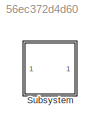
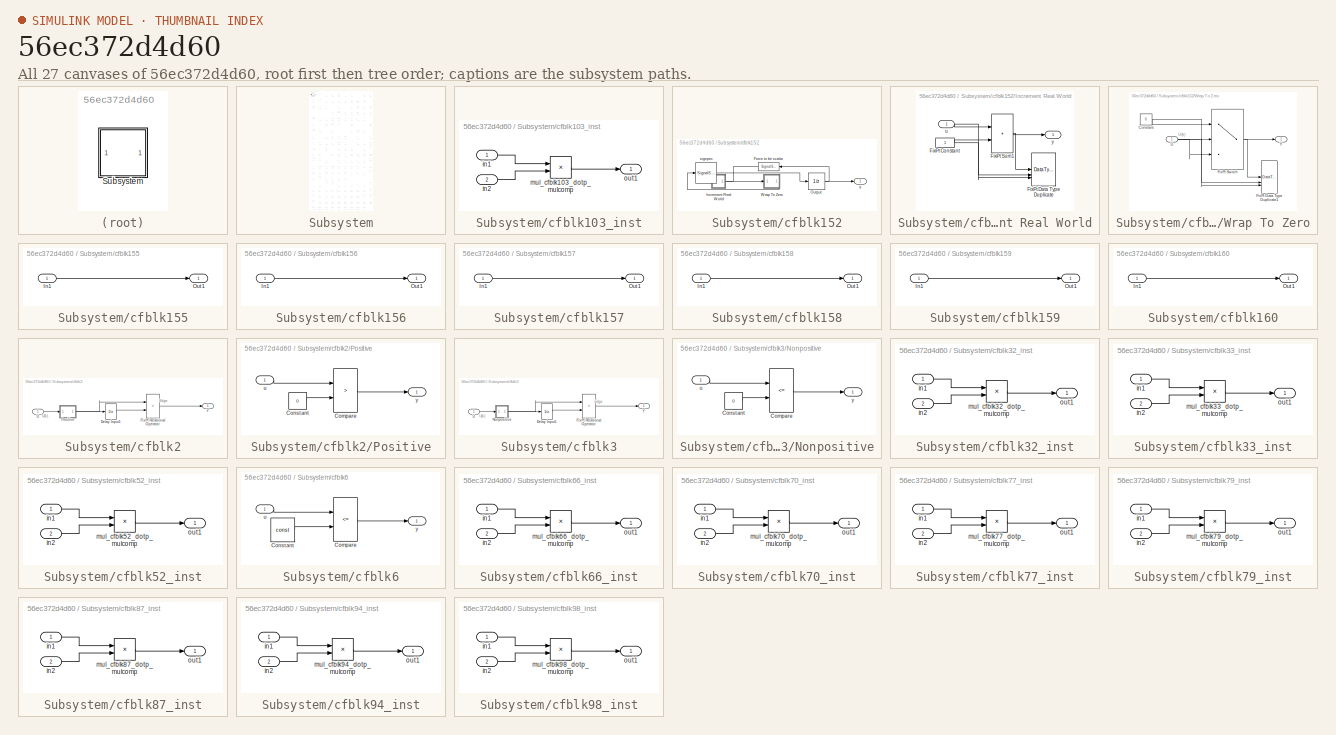
[diagram: thumbnail index - all 27 canvases of the model, root first then tree order]
MODEL slx_56ec372d4d60
KIND model
CONFIG AbsTol = auto
CONFIG EnableMultiTasking = off
CONFIG FixedStep = auto
CONFIG MaxStep = auto
CONFIG MinStep = auto
CONFIG RelTol = 1e-3
CONFIG SampleTimeConstraint = Unconstrained
CONFIG SolverName = VariableStepAuto
CONFIG StartTime = 0.0
CONFIG StopTime = 10.0
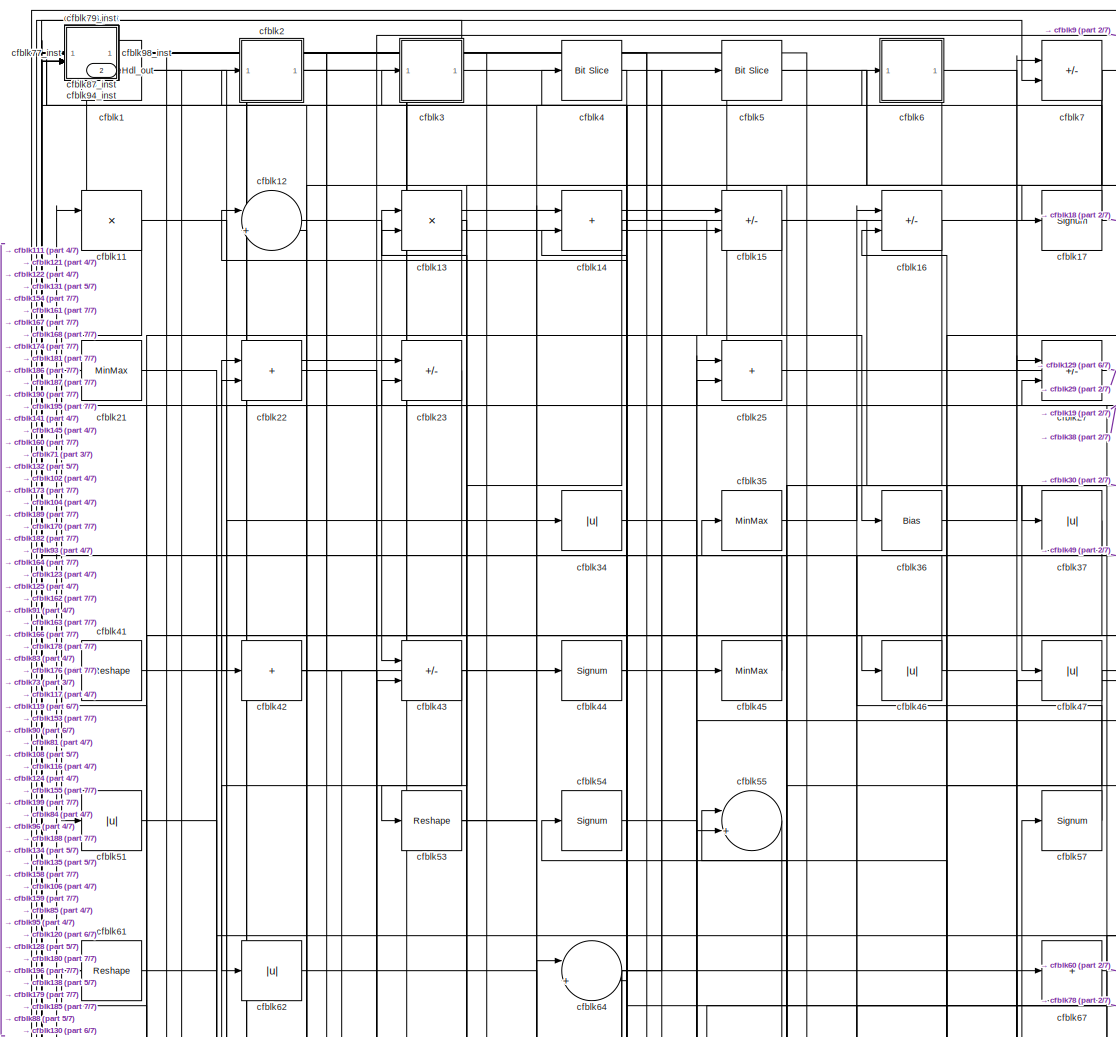
[diagram: Subsystem - part 1/7, top center region]
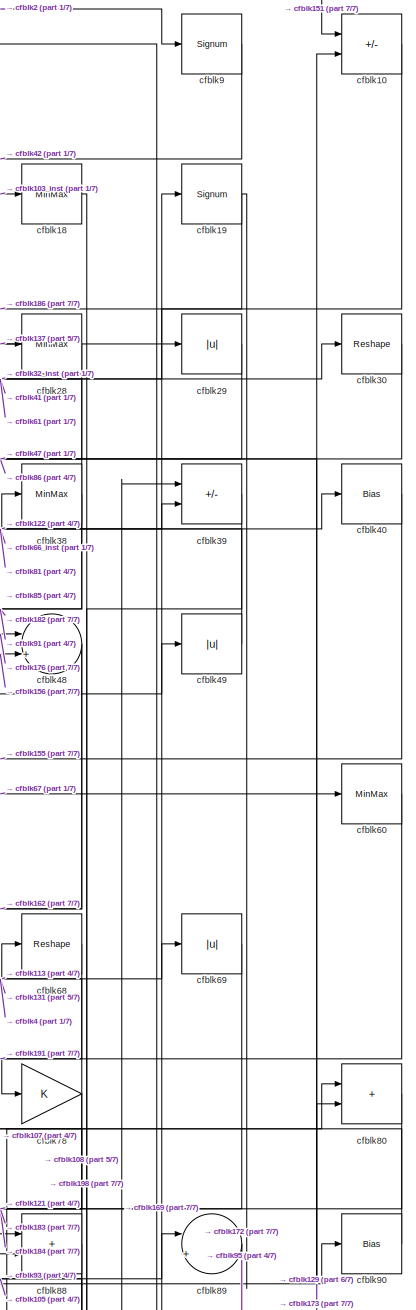
[diagram: Subsystem - part 2/7, top right region]
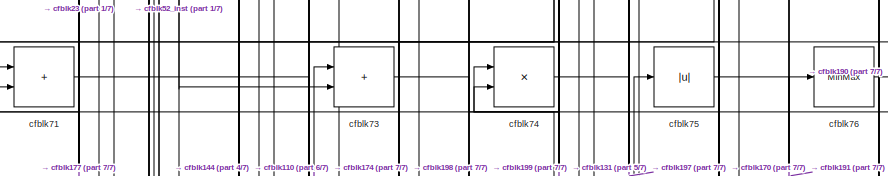
[diagram: Subsystem - part 3/7, middle left region]
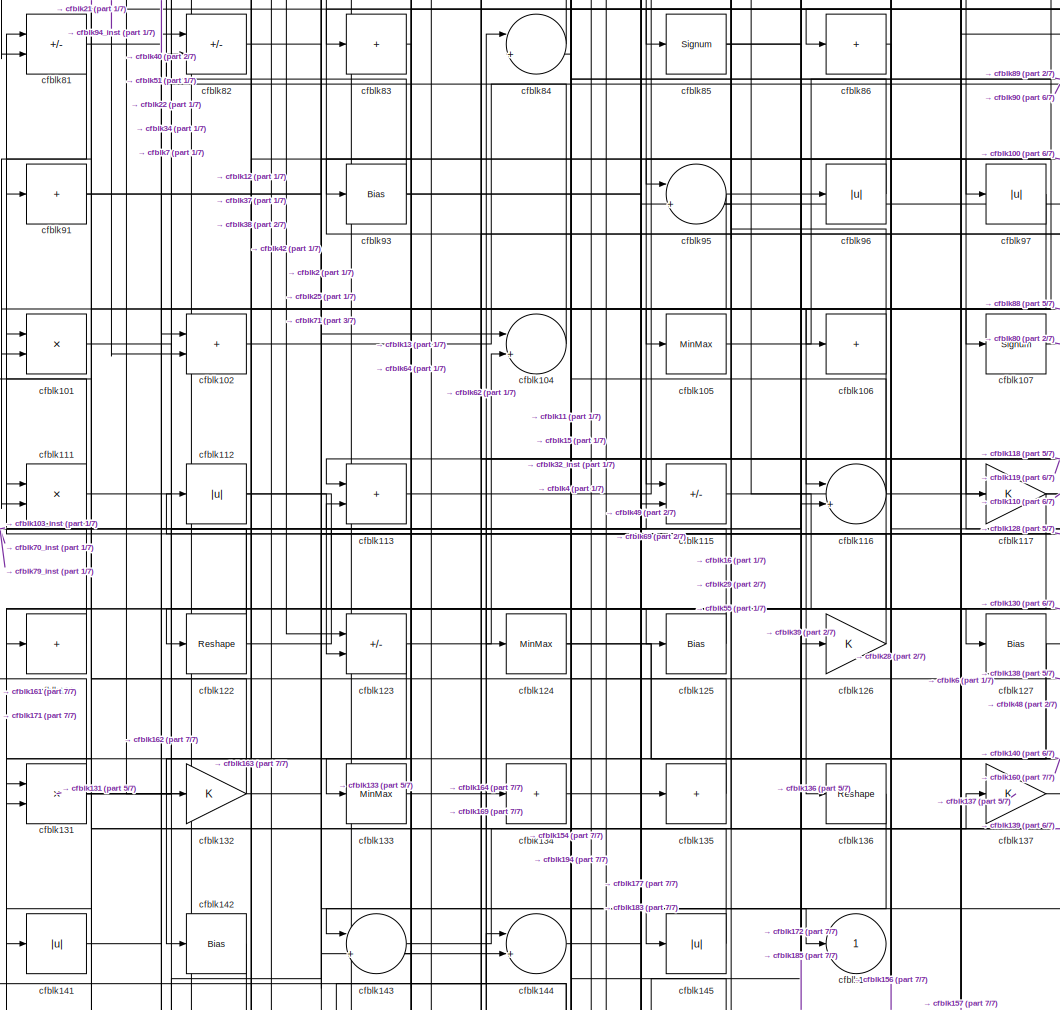
[diagram: Subsystem - part 4/7, central region]
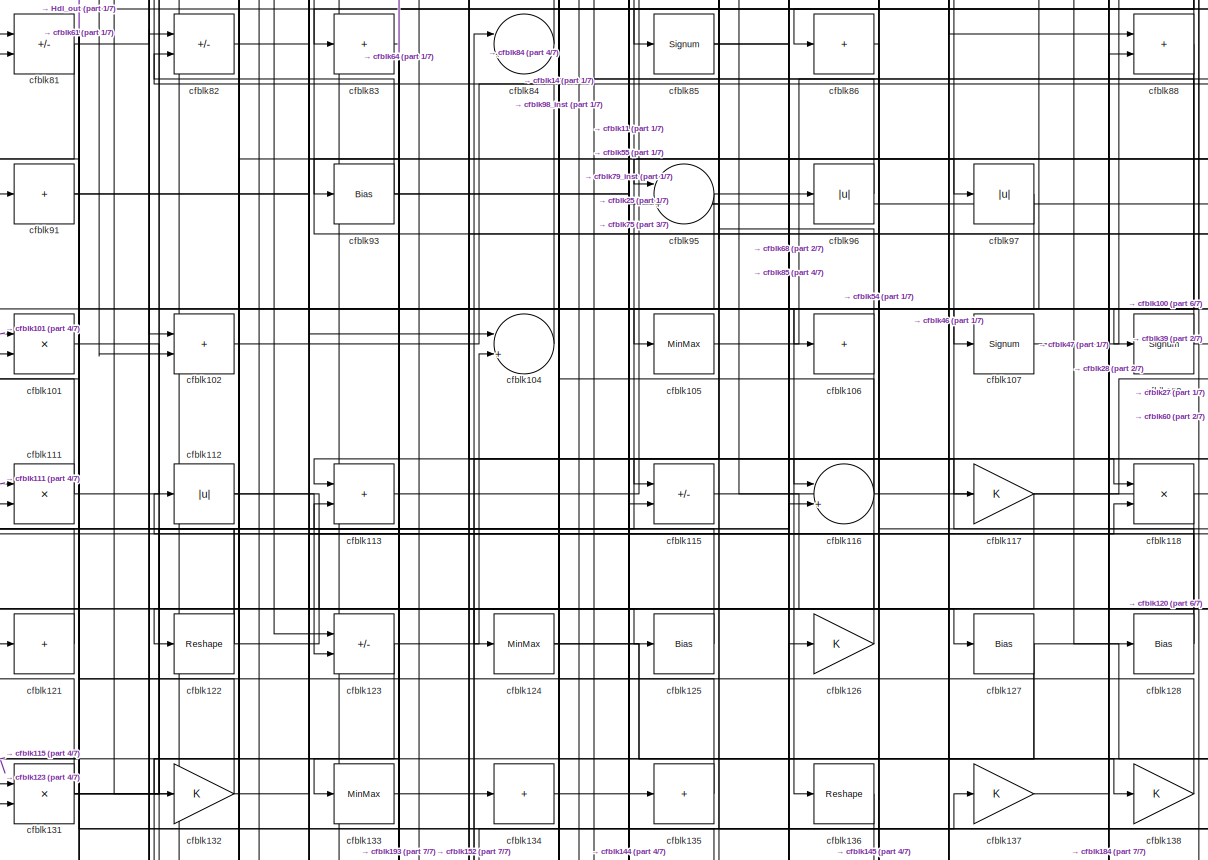
[diagram: Subsystem - part 5/7, full width, middle band]
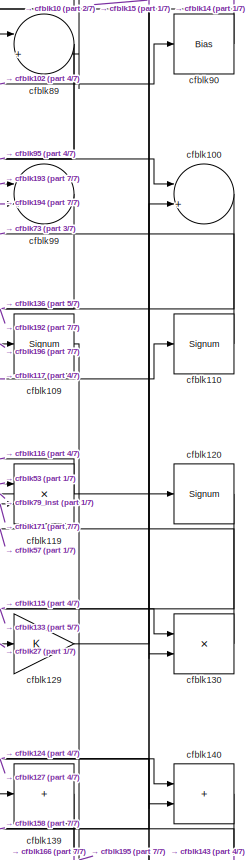
[diagram: Subsystem - part 6/7, middle right region]
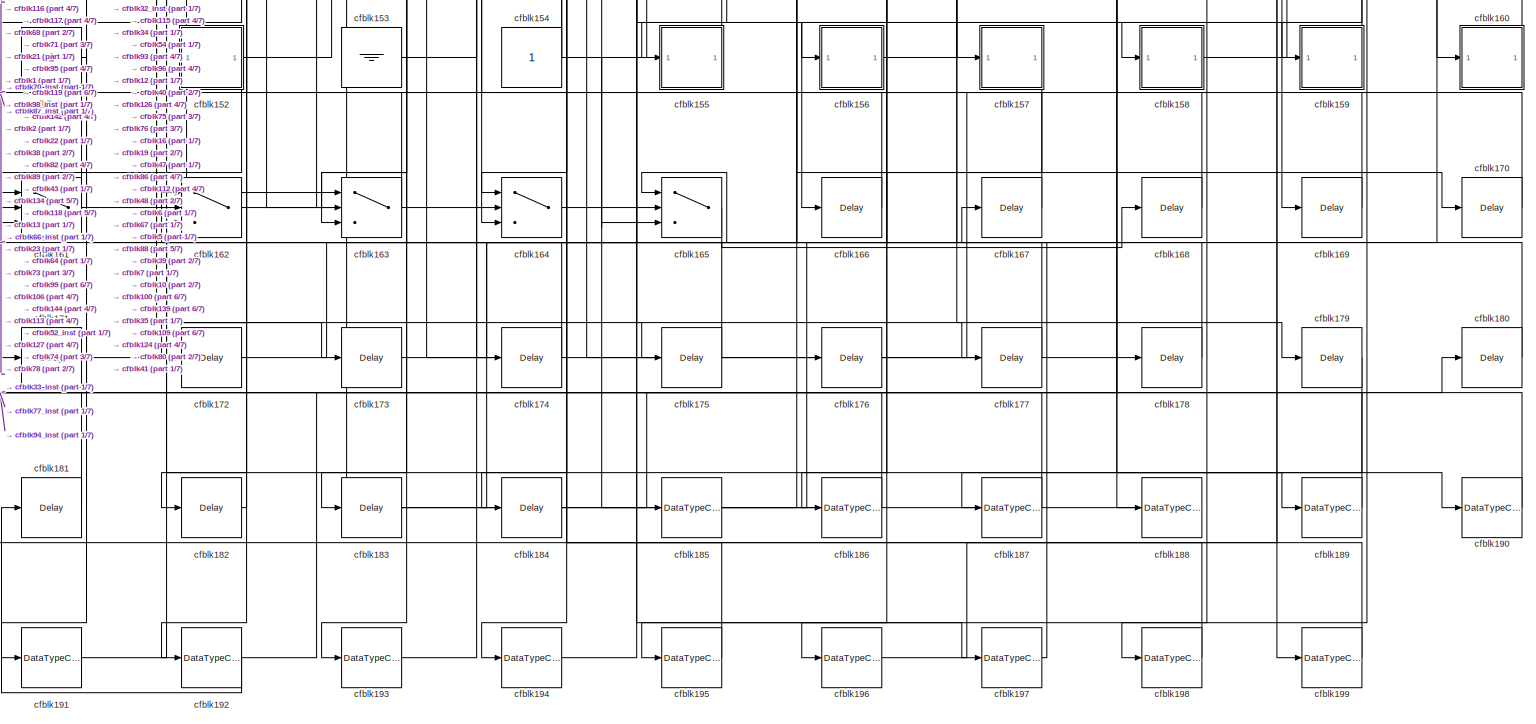
[diagram: Subsystem - part 7/7, full width, bottom band]
BLOCK [SubSystem] Subsystem
BLOCK [Outport] Subsystem/Hdl_out
  OutDataTypeStr = uint8
  Port = 2
  SampleTime = 1
BLOCK [Reference] Subsystem/cfblk1  REF=simulink/Logic and Bit
Operations/Bit Clear
  LibrarySourceBlock = hdlsllib/Logic and Bit\nOperations/Bit Clear
  SourceBlock = simulink/Logic and Bit\nOperations/Bit Clear
  SourceType = Bit Clear
BLOCK [Sum] Subsystem/cfblk10
  IconShape = rectangular
  Inputs = +-
  OutDataTypeStr = uint8
BLOCK [Sum] Subsystem/cfblk100
  Inputs = |++
  OutDataTypeStr = uint8
BLOCK [Product] Subsystem/cfblk101
  Inputs = */
  OutDataTypeStr = uint8
  RndMeth = Zero
  SaturateOnIntegerOverflow = on
BLOCK [Sum] Subsystem/cfblk102
  IconShape = rectangular
  OutDataTypeStr = uint8
BLOCK [SubSystem] Subsystem/cfblk103_inst
BLOCK [Inport] Subsystem/cfblk103_inst/in1
  OutDataTypeStr = uint8
  SampleTime = 1
BLOCK [Inport] Subsystem/cfblk103_inst/in2
  OutDataTypeStr = uint8
  Port = 2
  SampleTime = 1
BLOCK [Product] Subsystem/cfblk103_inst/mul_cfblk103_dotp_mulcomp
  Inputs = **
  OutDataTypeStr = uint8
  SampleTime = 1
BLOCK [Outport] Subsystem/cfblk103_inst/out1
  OutDataTypeStr = uint8
  SampleTime = 1
BLOCK [Sum] Subsystem/cfblk104
  Inputs = |++
  OutDataTypeStr = uint8
BLOCK [MinMax] Subsystem/cfblk105
  OutDataTypeStr = uint8
BLOCK [Sum] Subsystem/cfblk106
  IconShape = rectangular
  Inputs = +
  OutDataTypeStr = uint8
BLOCK [Signum] Subsystem/cfblk107
BLOCK [Signum] Subsystem/cfblk108
BLOCK [Signum] Subsystem/cfblk109
BLOCK [Product] Subsystem/cfblk11
  Inputs = */
  OutDataTypeStr = uint8
  RndMeth = Zero
  SaturateOnIntegerOverflow = on
BLOCK [Signum] Subsystem/cfblk110
BLOCK [Product] Subsystem/cfblk111
  Inputs = */
  OutDataTypeStr = uint8
  RndMeth = Zero
  SaturateOnIntegerOverflow = on
BLOCK [Abs] Subsystem/cfblk112
  OutDataTypeStr = uint8
  SaturateOnIntegerOverflow = off
BLOCK [Sum] Subsystem/cfblk113
  IconShape = rectangular
  OutDataTypeStr = uint8
BLOCK [Sum] Subsystem/cfblk115
  IconShape = rectangular
  Inputs = +-
  OutDataTypeStr = uint8
BLOCK [Sum] Subsystem/cfblk116
  Inputs = |++
  OutDataTypeStr = uint8
BLOCK [Gain] Subsystem/cfblk117
  OutDataTypeStr = uint8
BLOCK [Product] Subsystem/cfblk118
  Inputs = */
  OutDataTypeStr = uint8
  RndMeth = Zero
  SaturateOnIntegerOverflow = on
BLOCK [Product] Subsystem/cfblk119
  Inputs = */
  OutDataTypeStr = uint8
  RndMeth = Zero
  SaturateOnIntegerOverflow = on
BLOCK [Sum] Subsystem/cfblk12
  Inputs = |++
  OutDataTypeStr = uint8
BLOCK [Signum] Subsystem/cfblk120
BLOCK [Sum] Subsystem/cfblk121
  IconShape = rectangular
  Inputs = +
  OutDataTypeStr = uint8
BLOCK [Reshape] Subsystem/cfblk122
BLOCK [Sum] Subsystem/cfblk123
  IconShape = rectangular
  Inputs = +-
  OutDataTypeStr = uint8
BLOCK [MinMax] Subsystem/cfblk124
  OutDataTypeStr = uint8
BLOCK [Bias] Subsystem/cfblk125
  Bias = 0.0
  SaturateOnIntegerOverflow = off
BLOCK [Gain] Subsystem/cfblk126
  OutDataTypeStr = uint8
BLOCK [Bias] Subsystem/cfblk127
  Bias = 0.0
  SaturateOnIntegerOverflow = off
BLOCK [Bias] Subsystem/cfblk128
  Bias = 0.0
  SaturateOnIntegerOverflow = off
BLOCK [Gain] Subsystem/cfblk129
  OutDataTypeStr = uint8
BLOCK [Product] Subsystem/cfblk13
  Inputs = */
  OutDataTypeStr = uint8
  RndMeth = Zero
  SaturateOnIntegerOverflow = on
BLOCK [Product] Subsystem/cfblk130
  Inputs = */
  OutDataTypeStr = uint8
  RndMeth = Zero
  SaturateOnIntegerOverflow = on
BLOCK [Product] Subsystem/cfblk131
  Inputs = */
  OutDataTypeStr = uint8
  RndMeth = Zero
  SaturateOnIntegerOverflow = on
BLOCK [Gain] Subsystem/cfblk132
  OutDataTypeStr = uint8
BLOCK [MinMax] Subsystem/cfblk133
  OutDataTypeStr = uint8
BLOCK [Sum] Subsystem/cfblk134
  IconShape = rectangular
  Inputs = +
  OutDataTypeStr = uint8
BLOCK [Sum] Subsystem/cfblk135
  IconShape = rectangular
  Inputs = +
  OutDataTypeStr = uint8
BLOCK [Reshape] Subsystem/cfblk136
BLOCK [Gain] Subsystem/cfblk137
  OutDataTypeStr = uint8
BLOCK [Gain] Subsystem/cfblk138
  OutDataTypeStr = uint8
BLOCK [Sum] Subsystem/cfblk139
  IconShape = rectangular
  Inputs = +
  OutDataTypeStr = uint8
BLOCK [Sum] Subsystem/cfblk14
  IconShape = rectangular
  OutDataTypeStr = uint8
BLOCK [Sum] Subsystem/cfblk140
  IconShape = rectangular
  OutDataTypeStr = uint8
BLOCK [Abs] Subsystem/cfblk141
  OutDataTypeStr = uint8
  SaturateOnIntegerOverflow = off
BLOCK [Bias] Subsystem/cfblk142
  Bias = 0.0
  SaturateOnIntegerOverflow = off
BLOCK [Sum] Subsystem/cfblk143
  Inputs = |++
  OutDataTypeStr = uint8
BLOCK [Sum] Subsystem/cfblk144
  Inputs = |++
  OutDataTypeStr = uint8
BLOCK [Abs] Subsystem/cfblk145
  OutDataTypeStr = uint8
  SaturateOnIntegerOverflow = off
BLOCK [Outport] Subsystem/cfblk146
  OutDataTypeStr = uint8
  SampleTime = 1
  VectorParamsAs1DForOutWhenUnconnected = off
BLOCK [Sum] Subsystem/cfblk15
  IconShape = rectangular
  Inputs = +-
  OutDataTypeStr = uint8
BLOCK [Constant] Subsystem/cfblk151
  OutDataTypeStr = uint8
  SampleTime = -1
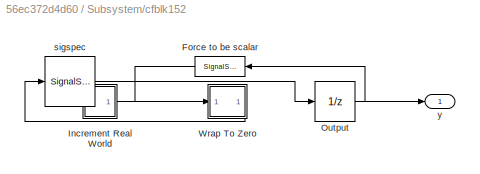
BLOCK [SubSystem] Subsystem/cfblk152
BLOCK [SignalSpecification] Subsystem/cfblk152/Force to be scalar
  Dimensions = 1
  DisableCoverage = on
BLOCK [SubSystem] Subsystem/cfblk152/Increment Real World
BLOCK [Constant] Subsystem/cfblk152/Increment Real World/FixPt Constant
  DisableCoverage = on
  OutDataTypeStr = Inherit: Inherit via back propagation
  SampleTime = -1
BLOCK [DataTypeDuplicate] Subsystem/cfblk152/Increment Real World/FixPt Data Type Duplicate
  DisableCoverage = on
  NumInputPorts = 3
BLOCK [Sum] Subsystem/cfblk152/Increment Real World/FixPt Sum1
  IconShape = rectangular
  InputSameDT = on
  LockScale = on
  OutDataTypeStr = Inherit: Inherit via back propagation
BLOCK [Inport] Subsystem/cfblk152/Increment Real World/u
  OutDataTypeStr = uint8
  SampleTime = 1
BLOCK [Outport] Subsystem/cfblk152/Increment Real World/y
  SampleTime = 1
BLOCK [UnitDelay] Subsystem/cfblk152/Output
  HasFrameUpgradeWarning = on
  InitialCondition = 0.0
  SampleTime = tsamp
BLOCK [SubSystem] Subsystem/cfblk152/Wrap To Zero
BLOCK [Constant] Subsystem/cfblk152/Wrap To Zero/Constant
  DisableCoverage = on
  OutDataTypeStr = Inherit: Inherit via back propagation
  SampleTime = -1
  Value = 0
BLOCK [DataTypeDuplicate] Subsystem/cfblk152/Wrap To Zero/FixPt Data Type Duplicate1
  DisableCoverage = on
  NumInputPorts = 3
BLOCK [Switch] Subsystem/cfblk152/Wrap To Zero/FixPt Switch
  Criteria = u2 > Threshold
  InputSameDT = off
  OutDataTypeStr = Inherit: Inherit via back propagation
  SaturateOnIntegerOverflow = off
  Threshold = Threshold
  ZeroCross = off
BLOCK [Inport] Subsystem/cfblk152/Wrap To Zero/U
  OutDataTypeStr = uint8
  SampleTime = 1
BLOCK [Outport] Subsystem/cfblk152/Wrap To Zero/Y
  SampleTime = 1
BLOCK [SignalSpecification] Subsystem/cfblk152/sigspec
  Dimensions = 1
  OutDataTypeStr = uint8
BLOCK [Outport] Subsystem/cfblk152/y
  SampleTime = 1
BLOCK [Ground] Subsystem/cfblk153
BLOCK [Constant] Subsystem/cfblk154
  OutDataTypeStr = uint8
  SampleTime = -1
BLOCK [SubSystem] Subsystem/cfblk155
BLOCK [Inport] Subsystem/cfblk155/In1
  OutDataTypeStr = uint8
  PortDimensions = 1
  SampleTime = 1
BLOCK [Outport] Subsystem/cfblk155/Out1
  SampleTime = 1
BLOCK [SubSystem] Subsystem/cfblk156
BLOCK [Inport] Subsystem/cfblk156/In1
  OutDataTypeStr = uint8
  PortDimensions = 1
  SampleTime = 1
BLOCK [Outport] Subsystem/cfblk156/Out1
  SampleTime = 1
BLOCK [SubSystem] Subsystem/cfblk157
BLOCK [Inport] Subsystem/cfblk157/In1
  OutDataTypeStr = uint8
  PortDimensions = 1
  SampleTime = 1
BLOCK [Outport] Subsystem/cfblk157/Out1
  SampleTime = 1
BLOCK [SubSystem] Subsystem/cfblk158
BLOCK [Inport] Subsystem/cfblk158/In1
  OutDataTypeStr = uint8
  PortDimensions = 1
  SampleTime = 1
BLOCK [Outport] Subsystem/cfblk158/Out1
  SampleTime = 1
BLOCK [SubSystem] Subsystem/cfblk159
BLOCK [Inport] Subsystem/cfblk159/In1
  OutDataTypeStr = uint8
  PortDimensions = 1
  SampleTime = 1
BLOCK [Outport] Subsystem/cfblk159/Out1
  SampleTime = 1
BLOCK [Sum] Subsystem/cfblk16
  IconShape = rectangular
  Inputs = +-
  OutDataTypeStr = uint8
BLOCK [SubSystem] Subsystem/cfblk160
BLOCK [Inport] Subsystem/cfblk160/In1
  OutDataTypeStr = uint8
  PortDimensions = 1
  SampleTime = 1
BLOCK [Outport] Subsystem/cfblk160/Out1
  SampleTime = 1
BLOCK [Switch] Subsystem/cfblk161
  InputSameDT = off
  OutDataTypeStr = uint8
  SaturateOnIntegerOverflow = off
BLOCK [Switch] Subsystem/cfblk162
  InputSameDT = off
  OutDataTypeStr = uint8
  SaturateOnIntegerOverflow = off
BLOCK [Switch] Subsystem/cfblk163
  InputSameDT = off
  OutDataTypeStr = uint8
  SaturateOnIntegerOverflow = off
BLOCK [Switch] Subsystem/cfblk164
  InputSameDT = off
  OutDataTypeStr = uint8
  SaturateOnIntegerOverflow = off
BLOCK [Switch] Subsystem/cfblk165
  InputSameDT = off
  OutDataTypeStr = uint8
  SaturateOnIntegerOverflow = off
BLOCK [Delay] Subsystem/cfblk166
  InputPortMap = u0
  SampleTime = 1
BLOCK [Delay] Subsystem/cfblk167
  InputPortMap = u0
  SampleTime = 1
BLOCK [Delay] Subsystem/cfblk168
  InputPortMap = u0
  SampleTime = 1
BLOCK [Delay] Subsystem/cfblk169
  InputPortMap = u0
  SampleTime = 1
BLOCK [Signum] Subsystem/cfblk17
BLOCK [Delay] Subsystem/cfblk170
  InputPortMap = u0
  SampleTime = 1
BLOCK [Delay] Subsystem/cfblk171
  InputPortMap = u0
  SampleTime = 1
BLOCK [Delay] Subsystem/cfblk172
  InputPortMap = u0
  SampleTime = 1
BLOCK [Delay] Subsystem/cfblk173
  InputPortMap = u0
  SampleTime = 1
BLOCK [Delay] Subsystem/cfblk174
  InputPortMap = u0
  SampleTime = 1
BLOCK [Delay] Subsystem/cfblk175
  InputPortMap = u0
  SampleTime = 1
BLOCK [Delay] Subsystem/cfblk176
  InputPortMap = u0
  SampleTime = 1
BLOCK [Delay] Subsystem/cfblk177
  InputPortMap = u0
  SampleTime = 1
BLOCK [Delay] Subsystem/cfblk178
  InputPortMap = u0
  SampleTime = 1
BLOCK [Delay] Subsystem/cfblk179
  InputPortMap = u0
  SampleTime = 1
BLOCK [MinMax] Subsystem/cfblk18
  OutDataTypeStr = uint8
BLOCK [Delay] Subsystem/cfblk180
  InputPortMap = u0
  SampleTime = 1
BLOCK [Delay] Subsystem/cfblk181
  InputPortMap = u0
  SampleTime = 1
BLOCK [Delay] Subsystem/cfblk182
  InputPortMap = u0
  SampleTime = 1
BLOCK [Delay] Subsystem/cfblk183
  InputPortMap = u0
  SampleTime = 1
BLOCK [Delay] Subsystem/cfblk184
  InputPortMap = u0
  SampleTime = 1
BLOCK [DataTypeConversion] Subsystem/cfblk185
  OutDataTypeStr = uint8
  RndMeth = Floor
  SaturateOnIntegerOverflow = off
BLOCK [DataTypeConversion] Subsystem/cfblk186
  OutDataTypeStr = uint8
  RndMeth = Floor
  SaturateOnIntegerOverflow = off
BLOCK [DataTypeConversion] Subsystem/cfblk187
  OutDataTypeStr = uint8
  RndMeth = Floor
  SaturateOnIntegerOverflow = off
BLOCK [DataTypeConversion] Subsystem/cfblk188
  OutDataTypeStr = uint8
  RndMeth = Floor
  SaturateOnIntegerOverflow = off
BLOCK [DataTypeConversion] Subsystem/cfblk189
  OutDataTypeStr = uint8
  RndMeth = Floor
  SaturateOnIntegerOverflow = off
BLOCK [Signum] Subsystem/cfblk19
BLOCK [DataTypeConversion] Subsystem/cfblk190
  OutDataTypeStr = uint8
  RndMeth = Floor
  SaturateOnIntegerOverflow = off
BLOCK [DataTypeConversion] Subsystem/cfblk191
  OutDataTypeStr = uint8
  RndMeth = Floor
  SaturateOnIntegerOverflow = off
BLOCK [DataTypeConversion] Subsystem/cfblk192
  OutDataTypeStr = uint8
  RndMeth = Floor
  SaturateOnIntegerOverflow = off
BLOCK [DataTypeConversion] Subsystem/cfblk193
  OutDataTypeStr = uint8
  RndMeth = Floor
  SaturateOnIntegerOverflow = off
BLOCK [DataTypeConversion] Subsystem/cfblk194
  OutDataTypeStr = uint8
  RndMeth = Floor
  SaturateOnIntegerOverflow = off
BLOCK [DataTypeConversion] Subsystem/cfblk195
  OutDataTypeStr = uint8
  RndMeth = Floor
  SaturateOnIntegerOverflow = off
BLOCK [DataTypeConversion] Subsystem/cfblk196
  OutDataTypeStr = uint8
  RndMeth = Floor
  SaturateOnIntegerOverflow = off
BLOCK [DataTypeConversion] Subsystem/cfblk197
  OutDataTypeStr = uint8
  RndMeth = Floor
  SaturateOnIntegerOverflow = off
BLOCK [DataTypeConversion] Subsystem/cfblk198
  OutDataTypeStr = uint8
  RndMeth = Floor
  SaturateOnIntegerOverflow = off
BLOCK [DataTypeConversion] Subsystem/cfblk199
  OutDataTypeStr = uint8
  RndMeth = Floor
  SaturateOnIntegerOverflow = off
BLOCK [SubSystem] Subsystem/cfblk2
BLOCK [UnitDelay] Subsystem/cfblk2/Delay Input1
  Description = Store in Global RAM
  DisableCoverage = on
  HasFrameUpgradeWarning = on
  InitialCondition = vinit
  SampleTime = -1
BLOCK [RelationalOperator] Subsystem/cfblk2/FixPt Relational Operator
  InputSameDT = off
  Operator = >
  OutDataTypeStr = fixdt(0, 8)
  ZeroCross = off
BLOCK [SubSystem] Subsystem/cfblk2/Positive
BLOCK [RelationalOperator] Subsystem/cfblk2/Positive/Compare
  Operator = >
  OutDataTypeStr = boolean
  ZeroCross = off
BLOCK [Constant] Subsystem/cfblk2/Positive/Constant
  DisableCoverage = on
  OutDataTypeStr = Inherit: Inherit via back propagation
  PreserveConstantTs = on
  SampleTime = -1
  Value = 0
BLOCK [Inport] Subsystem/cfblk2/Positive/u
  OutDataTypeStr = uint8
  SampleTime = 1
BLOCK [Outport] Subsystem/cfblk2/Positive/y
  SampleTime = 1
BLOCK [Inport] Subsystem/cfblk2/U
  OutDataTypeStr = uint8
  SampleTime = 1
BLOCK [Outport] Subsystem/cfblk2/Y
  SampleTime = 1
BLOCK [MinMax] Subsystem/cfblk21
  OutDataTypeStr = uint8
BLOCK [Sum] Subsystem/cfblk22
  IconShape = rectangular
  OutDataTypeStr = uint8
BLOCK [Sum] Subsystem/cfblk23
  IconShape = rectangular
  Inputs = +-
  OutDataTypeStr = uint8
BLOCK [Sum] Subsystem/cfblk25
  IconShape = rectangular
  OutDataTypeStr = uint8
BLOCK [Sum] Subsystem/cfblk27
  IconShape = rectangular
  Inputs = +-
  OutDataTypeStr = uint8
BLOCK [MinMax] Subsystem/cfblk28
  OutDataTypeStr = uint8
BLOCK [Abs] Subsystem/cfblk29
  OutDataTypeStr = uint8
  SaturateOnIntegerOverflow = off
BLOCK [SubSystem] Subsystem/cfblk3
BLOCK [UnitDelay] Subsystem/cfblk3/Delay Input1
  Description = Store in Global RAM
  DisableCoverage = on
  HasFrameUpgradeWarning = on
  InitialCondition = vinit
  SampleTime = -1
BLOCK [RelationalOperator] Subsystem/cfblk3/FixPt Relational Operator
  InputSameDT = off
  Operator = >
  OutDataTypeStr = fixdt(0, 8)
  ZeroCross = off
BLOCK [SubSystem] Subsystem/cfblk3/Nonpositive
BLOCK [RelationalOperator] Subsystem/cfblk3/Nonpositive/Compare
  Operator = <=
  OutDataTypeStr = boolean
  ZeroCross = off
BLOCK [Constant] Subsystem/cfblk3/Nonpositive/Constant
  DisableCoverage = on
  OutDataTypeStr = Inherit: Inherit via back propagation
  PreserveConstantTs = on
  SampleTime = -1
  Value = 0
BLOCK [Inport] Subsystem/cfblk3/Nonpositive/u
  OutDataTypeStr = uint8
  SampleTime = 1
BLOCK [Outport] Subsystem/cfblk3/Nonpositive/y
  SampleTime = 1
BLOCK [Inport] Subsystem/cfblk3/U
  OutDataTypeStr = uint8
  SampleTime = 1
BLOCK [Outport] Subsystem/cfblk3/Y
  SampleTime = 1
BLOCK [Reshape] Subsystem/cfblk30
BLOCK [SubSystem] Subsystem/cfblk32_inst
BLOCK [Inport] Subsystem/cfblk32_inst/in1
  OutDataTypeStr = uint8
  SampleTime = 1
BLOCK [Inport] Subsystem/cfblk32_inst/in2
  OutDataTypeStr = uint8
  Port = 2
  SampleTime = 1
BLOCK [Product] Subsystem/cfblk32_inst/mul_cfblk32_dotp_mulcomp
  Inputs = **
  OutDataTypeStr = uint8
  SampleTime = 1
BLOCK [Outport] Subsystem/cfblk32_inst/out1
  OutDataTypeStr = uint8
  SampleTime = 1
BLOCK [SubSystem] Subsystem/cfblk33_inst
BLOCK [Inport] Subsystem/cfblk33_inst/in1
  OutDataTypeStr = uint8
  SampleTime = 1
BLOCK [Inport] Subsystem/cfblk33_inst/in2
  OutDataTypeStr = uint8
  Port = 2
  SampleTime = 1
BLOCK [Product] Subsystem/cfblk33_inst/mul_cfblk33_dotp_mulcomp
  Inputs = **
  OutDataTypeStr = uint8
  SampleTime = 1
BLOCK [Outport] Subsystem/cfblk33_inst/out1
  OutDataTypeStr = uint8
  SampleTime = 1
BLOCK [Abs] Subsystem/cfblk34
  OutDataTypeStr = uint8
  SaturateOnIntegerOverflow = off
BLOCK [MinMax] Subsystem/cfblk35
  OutDataTypeStr = uint8
BLOCK [Bias] Subsystem/cfblk36
  Bias = 0.0
  SaturateOnIntegerOverflow = off
BLOCK [Abs] Subsystem/cfblk37
  OutDataTypeStr = uint8
  SaturateOnIntegerOverflow = off
BLOCK [MinMax] Subsystem/cfblk38
  OutDataTypeStr = uint8
BLOCK [Sum] Subsystem/cfblk39
  IconShape = rectangular
  Inputs = +-
  OutDataTypeStr = uint8
BLOCK [Reference] Subsystem/cfblk4  REF=hdlsllib/Logic and Bit
Operations/Bit Slice
  SourceBlock = hdlsllib/Logic and Bit\nOperations/Bit Slice
  SourceType = Bit Slice
BLOCK [Bias] Subsystem/cfblk40
  Bias = 0.0
  SaturateOnIntegerOverflow = off
BLOCK [Reshape] Subsystem/cfblk41
BLOCK [Sum] Subsystem/cfblk42
  IconShape = rectangular
  Inputs = +
  OutDataTypeStr = uint8
BLOCK [Sum] Subsystem/cfblk43
  IconShape = rectangular
  Inputs = +-
  OutDataTypeStr = uint8
BLOCK [Signum] Subsystem/cfblk44
BLOCK [MinMax] Subsystem/cfblk45
  OutDataTypeStr = uint8
BLOCK [Abs] Subsystem/cfblk46
  OutDataTypeStr = uint8
  SaturateOnIntegerOverflow = off
BLOCK [Abs] Subsystem/cfblk47
  OutDataTypeStr = uint8
  SaturateOnIntegerOverflow = off
BLOCK [Sum] Subsystem/cfblk48
  Inputs = |++
  OutDataTypeStr = uint8
BLOCK [Abs] Subsystem/cfblk49
  OutDataTypeStr = uint8
  SaturateOnIntegerOverflow = off
BLOCK [Reference] Subsystem/cfblk5  REF=hdlsllib/Logic and Bit
Operations/Bit Slice
  SourceBlock = hdlsllib/Logic and Bit\nOperations/Bit Slice
  SourceType = Bit Slice
BLOCK [Abs] Subsystem/cfblk51
  OutDataTypeStr = uint8
  SaturateOnIntegerOverflow = off
BLOCK [SubSystem] Subsystem/cfblk52_inst
BLOCK [Inport] Subsystem/cfblk52_inst/in1
  OutDataTypeStr = uint8
  SampleTime = 1
BLOCK [Inport] Subsystem/cfblk52_inst/in2
  OutDataTypeStr = uint8
  Port = 2
  SampleTime = 1
BLOCK [Product] Subsystem/cfblk52_inst/mul_cfblk52_dotp_mulcomp
  Inputs = **
  OutDataTypeStr = uint8
  SampleTime = 1
BLOCK [Outport] Subsystem/cfblk52_inst/out1
  OutDataTypeStr = uint8
  SampleTime = 1
BLOCK [Reshape] Subsystem/cfblk53
BLOCK [Signum] Subsystem/cfblk54
BLOCK [Sum] Subsystem/cfblk55
  Inputs = |++
  OutDataTypeStr = uint8
BLOCK [Signum] Subsystem/cfblk57
BLOCK [SubSystem] Subsystem/cfblk6
BLOCK [RelationalOperator] Subsystem/cfblk6/Compare
  Operator = <=
  OutDataTypeStr = fixdt(0, 8)
BLOCK [Constant] Subsystem/cfblk6/Constant
  DisableCoverage = on
  OutDataTypeStr = Inherit: Inherit via back propagation
  SampleTime = -1
  Value = const
BLOCK [Inport] Subsystem/cfblk6/u
  OutDataTypeStr = uint8
  SampleTime = 1
BLOCK [Outport] Subsystem/cfblk6/y
  SampleTime = 1
BLOCK [MinMax] Subsystem/cfblk60
  OutDataTypeStr = uint8
BLOCK [Reshape] Subsystem/cfblk61
BLOCK [Abs] Subsystem/cfblk62
  OutDataTypeStr = uint8
  SaturateOnIntegerOverflow = off
BLOCK [Sum] Subsystem/cfblk64
  Inputs = |++
  OutDataTypeStr = uint8
BLOCK [SubSystem] Subsystem/cfblk66_inst
BLOCK [Inport] Subsystem/cfblk66_inst/in1
  OutDataTypeStr = uint8
  SampleTime = 1
BLOCK [Inport] Subsystem/cfblk66_inst/in2
  OutDataTypeStr = uint8
  Port = 2
  SampleTime = 1
BLOCK [Product] Subsystem/cfblk66_inst/mul_cfblk66_dotp_mulcomp
  Inputs = **
  OutDataTypeStr = uint8
  SampleTime = 1
BLOCK [Outport] Subsystem/cfblk66_inst/out1
  OutDataTypeStr = uint8
  SampleTime = 1
BLOCK [Sum] Subsystem/cfblk67
  IconShape = rectangular
  Inputs = +
  OutDataTypeStr = uint8
BLOCK [Reshape] Subsystem/cfblk68
BLOCK [Abs] Subsystem/cfblk69
  OutDataTypeStr = uint8
  SaturateOnIntegerOverflow = off
BLOCK [Sum] Subsystem/cfblk7
  IconShape = rectangular
  Inputs = +-
  OutDataTypeStr = uint8
BLOCK [SubSystem] Subsystem/cfblk70_inst
BLOCK [Inport] Subsystem/cfblk70_inst/in1
  OutDataTypeStr = uint8
  SampleTime = 1
BLOCK [Inport] Subsystem/cfblk70_inst/in2
  OutDataTypeStr = uint8
  Port = 2
  SampleTime = 1
BLOCK [Product] Subsystem/cfblk70_inst/mul_cfblk70_dotp_mulcomp
  Inputs = **
  OutDataTypeStr = uint8
  SampleTime = 1
BLOCK [Outport] Subsystem/cfblk70_inst/out1
  OutDataTypeStr = uint8
  SampleTime = 1
BLOCK [Sum] Subsystem/cfblk71
  IconShape = rectangular
  OutDataTypeStr = uint8
BLOCK [Sum] Subsystem/cfblk73
  IconShape = rectangular
  OutDataTypeStr = uint8
BLOCK [Product] Subsystem/cfblk74
  Inputs = */
  OutDataTypeStr = uint8
  RndMeth = Zero
  SaturateOnIntegerOverflow = on
BLOCK [Abs] Subsystem/cfblk75
  OutDataTypeStr = uint8
  SaturateOnIntegerOverflow = off
BLOCK [MinMax] Subsystem/cfblk76
  OutDataTypeStr = uint8
BLOCK [SubSystem] Subsystem/cfblk77_inst
BLOCK [Inport] Subsystem/cfblk77_inst/in1
  OutDataTypeStr = uint8
  SampleTime = 1
BLOCK [Inport] Subsystem/cfblk77_inst/in2
  OutDataTypeStr = uint8
  Port = 2
  SampleTime = 1
BLOCK [Product] Subsystem/cfblk77_inst/mul_cfblk77_dotp_mulcomp
  Inputs = **
  OutDataTypeStr = uint8
  SampleTime = 1
BLOCK [Outport] Subsystem/cfblk77_inst/out1
  OutDataTypeStr = uint8
  SampleTime = 1
BLOCK [Gain] Subsystem/cfblk78
  OutDataTypeStr = uint8
BLOCK [SubSystem] Subsystem/cfblk79_inst
BLOCK [Inport] Subsystem/cfblk79_inst/in1
  OutDataTypeStr = uint8
  SampleTime = 1
BLOCK [Inport] Subsystem/cfblk79_inst/in2
  OutDataTypeStr = uint8
  Port = 2
  SampleTime = 1
BLOCK [Product] Subsystem/cfblk79_inst/mul_cfblk79_dotp_mulcomp
  Inputs = **
  OutDataTypeStr = uint8
  SampleTime = 1
BLOCK [Outport] Subsystem/cfblk79_inst/out1
  OutDataTypeStr = uint8
  SampleTime = 1
BLOCK [Sum] Subsystem/cfblk80
  IconShape = rectangular
  OutDataTypeStr = uint8
BLOCK [Sum] Subsystem/cfblk81
  IconShape = rectangular
  Inputs = +-
  OutDataTypeStr = uint8
BLOCK [Sum] Subsystem/cfblk82
  IconShape = rectangular
  Inputs = +-
  OutDataTypeStr = uint8
BLOCK [Sum] Subsystem/cfblk83
  IconShape = rectangular
  Inputs = +
  OutDataTypeStr = uint8
BLOCK [Sum] Subsystem/cfblk84
  Inputs = |++
  OutDataTypeStr = uint8
BLOCK [Signum] Subsystem/cfblk85
BLOCK [Sum] Subsystem/cfblk86
  IconShape = rectangular
  Inputs = +
  OutDataTypeStr = uint8
BLOCK [SubSystem] Subsystem/cfblk87_inst
BLOCK [Inport] Subsystem/cfblk87_inst/in1
  OutDataTypeStr = uint8
  SampleTime = 1
BLOCK [Inport] Subsystem/cfblk87_inst/in2
  OutDataTypeStr = uint8
  Port = 2
  SampleTime = 1
BLOCK [Product] Subsystem/cfblk87_inst/mul_cfblk87_dotp_mulcomp
  Inputs = **
  OutDataTypeStr = uint8
  SampleTime = 1
BLOCK [Outport] Subsystem/cfblk87_inst/out1
  OutDataTypeStr = uint8
  SampleTime = 1
BLOCK [Sum] Subsystem/cfblk88
  IconShape = rectangular
  OutDataTypeStr = uint8
BLOCK [Sum] Subsystem/cfblk89
  Inputs = |++
  OutDataTypeStr = uint8
BLOCK [Signum] Subsystem/cfblk9
BLOCK [Bias] Subsystem/cfblk90
  Bias = 0.0
  SaturateOnIntegerOverflow = off
BLOCK [Sum] Subsystem/cfblk91
  IconShape = rectangular
  Inputs = +
  OutDataTypeStr = uint8
BLOCK [Bias] Subsystem/cfblk93
  Bias = 0.0
  SaturateOnIntegerOverflow = off
BLOCK [SubSystem] Subsystem/cfblk94_inst
BLOCK [Inport] Subsystem/cfblk94_inst/in1
  OutDataTypeStr = uint8
  SampleTime = 1
BLOCK [Inport] Subsystem/cfblk94_inst/in2
  OutDataTypeStr = uint8
  Port = 2
  SampleTime = 1
BLOCK [Product] Subsystem/cfblk94_inst/mul_cfblk94_dotp_mulcomp
  Inputs = **
  OutDataTypeStr = uint8
  SampleTime = 1
BLOCK [Outport] Subsystem/cfblk94_inst/out1
  OutDataTypeStr = uint8
  SampleTime = 1
BLOCK [Sum] Subsystem/cfblk95
  Inputs = |++
  OutDataTypeStr = uint8
BLOCK [Abs] Subsystem/cfblk96
  OutDataTypeStr = uint8
  SaturateOnIntegerOverflow = off
BLOCK [Abs] Subsystem/cfblk97
  OutDataTypeStr = uint8
  SaturateOnIntegerOverflow = off
BLOCK [SubSystem] Subsystem/cfblk98_inst
BLOCK [Inport] Subsystem/cfblk98_inst/in1
  OutDataTypeStr = uint8
  SampleTime = 1
BLOCK [Inport] Subsystem/cfblk98_inst/in2
  OutDataTypeStr = uint8
  Port = 2
  SampleTime = 1
BLOCK [Product] Subsystem/cfblk98_inst/mul_cfblk98_dotp_mulcomp
  Inputs = **
  OutDataTypeStr = uint8
  SampleTime = 1
BLOCK [Outport] Subsystem/cfblk98_inst/out1
  OutDataTypeStr = uint8
  SampleTime = 1
BLOCK [Sum] Subsystem/cfblk99
  Inputs = |++
  OutDataTypeStr = uint8
ANNOTATION Subsystem/cfblk152/Wrap To Zero: U(k)
ANNOTATION Subsystem/cfblk2: Edge
ANNOTATION Subsystem/cfblk2: U(k)
ANNOTATION Subsystem/cfblk3: Edge
ANNOTATION Subsystem/cfblk3: U(k)
LINE Subsystem/cfblk100:1 -> Subsystem/cfblk136:1
LINE Subsystem/cfblk101:1 -> Subsystem/cfblk127:1
LINE Subsystem/cfblk102:1 -> Subsystem/cfblk90:1
LINE Subsystem/cfblk103_inst/in1:1 -> Subsystem/cfblk103_inst/mul_cfblk103_dotp_mulcomp:1
LINE Subsystem/cfblk103_inst/in2:1 -> Subsystem/cfblk103_inst/mul_cfblk103_dotp_mulcomp:2
LINE Subsystem/cfblk103_inst/mul_cfblk103_dotp_mulcomp:1 -> Subsystem/cfblk103_inst/out1:1
NET Subsystem/cfblk103_inst:1 -> Subsystem/cfblk11:2, Subsystem/cfblk18:1
LINE Subsystem/cfblk104:1 -> Subsystem/cfblk22:1
LINE Subsystem/cfblk105:1 -> Subsystem/cfblk89:1
NET Subsystem/cfblk106:1 -> Subsystem/cfblk164:3, Subsystem/cfblk55:1
LINE Subsystem/cfblk107:1 -> Subsystem/cfblk80:1
NET Subsystem/cfblk108:1 -> Subsystem/cfblk39:1, Subsystem/cfblk98_inst:1
LINE Subsystem/cfblk109:1 -> Subsystem/cfblk195:1
LINE Subsystem/cfblk10:1 -> Subsystem/cfblk169:1
LINE Subsystem/cfblk110:1 -> Subsystem/cfblk73:1
NET Subsystem/cfblk111:1 -> Subsystem/cfblk34:1, Subsystem/cfblk7:2
NET Subsystem/cfblk112:1 -> Subsystem/cfblk123:2, Subsystem/cfblk157:1
LINE Subsystem/cfblk113:1 -> Subsystem/cfblk69:1
LINE Subsystem/cfblk115:1 -> Subsystem/cfblk130:1
NET Subsystem/cfblk116:1 -> Subsystem/cfblk113:1, Subsystem/cfblk171:1, Subsystem/cfblk32_inst:2
NET Subsystem/cfblk117:1 -> Subsystem/cfblk110:1, Subsystem/cfblk161:3
LINE Subsystem/cfblk118:1 -> Subsystem/cfblk193:1
LINE Subsystem/cfblk119:1 -> Subsystem/cfblk116:1
NET Subsystem/cfblk11:1 -> Subsystem/cfblk135:1, Subsystem/cfblk51:1
LINE Subsystem/cfblk120:1 -> Subsystem/cfblk133:1
LINE Subsystem/cfblk121:1 -> Subsystem/cfblk70_inst:2
NET Subsystem/cfblk122:1 -> Subsystem/cfblk103_inst:2, Subsystem/cfblk39:2, Subsystem/cfblk79_inst:2
NET Subsystem/cfblk123:1 -> Subsystem/cfblk104:2, Subsystem/cfblk131:2
NET Subsystem/cfblk124:1 -> Subsystem/cfblk140:1, Subsystem/cfblk160:1
LINE Subsystem/cfblk125:1 -> Subsystem/cfblk81:1
LINE Subsystem/cfblk126:1 -> Subsystem/cfblk112:1
NET Subsystem/cfblk127:1 -> Subsystem/cfblk140:2, Subsystem/cfblk142:1, Subsystem/cfblk194:1
NET Subsystem/cfblk128:1 -> Subsystem/cfblk111:1, Subsystem/cfblk54:1
LINE Subsystem/cfblk129:1 -> Subsystem/cfblk10:2
LINE Subsystem/cfblk12:1 -> Subsystem/cfblk43:1
LINE Subsystem/cfblk130:1 -> Subsystem/cfblk57:1
NET Subsystem/cfblk131:1 -> Subsystem/cfblk25:2, Subsystem/cfblk68:1, Subsystem/cfblk75:1, Subsystem/cfblk79_inst:1
NET Subsystem/cfblk132:1 -> Subsystem/Hdl_out:1, Subsystem/cfblk118:2, Subsystem/cfblk61:1
LINE Subsystem/cfblk133:1 -> Subsystem/cfblk84:1
LINE Subsystem/cfblk134:1 -> Subsystem/cfblk55:2
LINE Subsystem/cfblk135:1 -> Subsystem/cfblk14:2
LINE Subsystem/cfblk136:1 -> Subsystem/cfblk145:1
LINE Subsystem/cfblk137:1 -> Subsystem/cfblk28:1
LINE Subsystem/cfblk138:1 -> Subsystem/cfblk101:1
LINE Subsystem/cfblk139:1 -> Subsystem/cfblk166:1
NET Subsystem/cfblk13:1 -> Subsystem/cfblk141:1, Subsystem/cfblk83:1
LINE Subsystem/cfblk140:1 -> Subsystem/cfblk143:1
LINE Subsystem/cfblk141:1 -> Subsystem/cfblk82:1
LINE Subsystem/cfblk142:1 -> Subsystem/cfblk161:1
LINE Subsystem/cfblk143:1 -> Subsystem/cfblk139:1
LINE Subsystem/cfblk144:1 -> Subsystem/cfblk137:1
LINE Subsystem/cfblk145:1 -> Subsystem/cfblk21:1
NET Subsystem/cfblk14:1 -> Subsystem/cfblk163:3, Subsystem/cfblk36:1
LINE Subsystem/cfblk151:1 -> Subsystem/cfblk10:1
NET Subsystem/cfblk152:1 -> Subsystem/cfblk134:1, Subsystem/cfblk161:2
LINE Subsystem/cfblk153:1 -> Subsystem/cfblk64:1
NET Subsystem/cfblk154:1 -> Subsystem/cfblk113:2, Subsystem/cfblk165:3, Subsystem/cfblk52_inst:1, Subsystem/cfblk96:1
LINE Subsystem/cfblk155/In1:1 -> Subsystem/cfblk155/Out1:1
LINE Subsystem/cfblk155:1 -> Subsystem/cfblk12:1
LINE Subsystem/cfblk156/In1:1 -> Subsystem/cfblk156/Out1:1
LINE Subsystem/cfblk156:1 -> Subsystem/cfblk48:2
LINE Subsystem/cfblk157/In1:1 -> Subsystem/cfblk157/Out1:1
LINE Subsystem/cfblk157:1 -> Subsystem/cfblk165:1
LINE Subsystem/cfblk158/In1:1 -> Subsystem/cfblk158/Out1:1
LINE Subsystem/cfblk158:1 -> Subsystem/cfblk100:2
LINE Subsystem/cfblk159/In1:1 -> Subsystem/cfblk159/Out1:1
LINE Subsystem/cfblk159:1 -> Subsystem/cfblk35:1
NET Subsystem/cfblk15:1 -> Subsystem/cfblk124:1, Subsystem/cfblk130:2
LINE Subsystem/cfblk160/In1:1 -> Subsystem/cfblk160/Out1:1
LINE Subsystem/cfblk160:1 -> Subsystem/cfblk41:1
NET Subsystem/cfblk161:1 -> Subsystem/cfblk175:1, Subsystem/cfblk52_inst:2
LINE Subsystem/cfblk162:1 -> Subsystem/cfblk43:2
LINE Subsystem/cfblk163:1 -> Subsystem/cfblk82:2
LINE Subsystem/cfblk164:1 -> Subsystem/cfblk165:2
LINE Subsystem/cfblk165:1 -> Subsystem/cfblk168:1
LINE Subsystem/cfblk166:1 -> Subsystem/cfblk13:1
LINE Subsystem/cfblk167:1 -> Subsystem/cfblk87_inst:1
LINE Subsystem/cfblk168:1 -> Subsystem/cfblk70_inst:1
LINE Subsystem/cfblk169:1 -> Subsystem/cfblk144:1
LINE Subsystem/cfblk16:1 -> Subsystem/cfblk85:1
LINE Subsystem/cfblk170:1 -> Subsystem/cfblk2:1
LINE Subsystem/cfblk171:1 -> Subsystem/cfblk119:2
LINE Subsystem/cfblk172:1 -> Subsystem/cfblk116:2
LINE Subsystem/cfblk173:1 -> Subsystem/cfblk80:2
LINE Subsystem/cfblk174:1 -> Subsystem/cfblk66_inst:2
LINE Subsystem/cfblk175:1 -> Subsystem/cfblk162:1
LINE Subsystem/cfblk176:1 -> Subsystem/cfblk48:1
LINE Subsystem/cfblk177:1 -> Subsystem/cfblk71:2
LINE Subsystem/cfblk178:1 -> Subsystem/cfblk23:2
LINE Subsystem/cfblk179:1 -> Subsystem/cfblk187:1
LINE Subsystem/cfblk17:1 -> Subsystem/cfblk3:1
LINE Subsystem/cfblk180:1 -> Subsystem/cfblk16:2
LINE Subsystem/cfblk181:1 -> Subsystem/cfblk94_inst:2
LINE Subsystem/cfblk182:1 -> Subsystem/cfblk22:2
LINE Subsystem/cfblk183:1 -> Subsystem/cfblk115:2
LINE Subsystem/cfblk184:1 -> Subsystem/cfblk88:2
NET Subsystem/cfblk185:1 -> Subsystem/cfblk126:1, Subsystem/cfblk67:1
LINE Subsystem/cfblk186:1 -> Subsystem/cfblk33_inst:1
LINE Subsystem/cfblk187:1 -> Subsystem/cfblk33_inst:2
LINE Subsystem/cfblk188:1 -> Subsystem/cfblk1:1
LINE Subsystem/cfblk189:1 -> Subsystem/cfblk77_inst:1
LINE Subsystem/cfblk18:1 -> Subsystem/cfblk78:1
LINE Subsystem/cfblk190:1 -> Subsystem/cfblk77_inst:2
LINE Subsystem/cfblk191:1 -> Subsystem/cfblk76:1
NET Subsystem/cfblk192:1 -> Subsystem/cfblk180:1, Subsystem/cfblk181:1
LINE Subsystem/cfblk193:1 -> Subsystem/cfblk99:1
LINE Subsystem/cfblk194:1 -> Subsystem/cfblk99:2
LINE Subsystem/cfblk195:1 -> Subsystem/cfblk87_inst:2
LINE Subsystem/cfblk196:1 -> Subsystem/cfblk109:1
LINE Subsystem/cfblk197:1 -> Subsystem/cfblk167:1
LINE Subsystem/cfblk198:1 -> Subsystem/cfblk74:1
LINE Subsystem/cfblk199:1 -> Subsystem/cfblk74:2
NET Subsystem/cfblk19:1 -> Subsystem/cfblk186:1, Subsystem/cfblk89:2
LINE Subsystem/cfblk1:1 -> Subsystem/cfblk189:1
LINE Subsystem/cfblk21:1 -> Subsystem/cfblk173:1
LINE Subsystem/cfblk22:1 -> Subsystem/cfblk46:1
LINE Subsystem/cfblk23:1 -> Subsystem/cfblk71:1
LINE Subsystem/cfblk25:1 -> Subsystem/cfblk7:1
LINE Subsystem/cfblk27:1 -> Subsystem/cfblk129:1
LINE Subsystem/cfblk28:1 -> Subsystem/cfblk86:1
LINE Subsystem/cfblk29:1 -> Subsystem/cfblk105:1
NET Subsystem/cfblk2:1 -> Subsystem/cfblk106:1, Subsystem/cfblk9:1
LINE Subsystem/cfblk30:1 -> Subsystem/cfblk47:1
LINE Subsystem/cfblk32_inst/in1:1 -> Subsystem/cfblk32_inst/mul_cfblk32_dotp_mulcomp:1
LINE Subsystem/cfblk32_inst/in2:1 -> Subsystem/cfblk32_inst/mul_cfblk32_dotp_mulcomp:2
LINE Subsystem/cfblk32_inst/mul_cfblk32_dotp_mulcomp:1 -> Subsystem/cfblk32_inst/out1:1
LINE Subsystem/cfblk32_inst:1 -> Subsystem/cfblk178:1
LINE Subsystem/cfblk33_inst/in1:1 -> Subsystem/cfblk33_inst/mul_cfblk33_dotp_mulcomp:1
LINE Subsystem/cfblk33_inst/in2:1 -> Subsystem/cfblk33_inst/mul_cfblk33_dotp_mulcomp:2
LINE Subsystem/cfblk33_inst/mul_cfblk33_dotp_mulcomp:1 -> Subsystem/cfblk33_inst/out1:1
LINE Subsystem/cfblk33_inst:1 -> Subsystem/cfblk185:1
LINE Subsystem/cfblk34:1 -> Subsystem/cfblk159:1
LINE Subsystem/cfblk35:1 -> Subsystem/cfblk37:1
LINE Subsystem/cfblk36:1 -> Subsystem/cfblk27:1
LINE Subsystem/cfblk37:1 -> Subsystem/cfblk122:1
NET Subsystem/cfblk38:1 -> Subsystem/cfblk182:1, Subsystem/cfblk32_inst:1, Subsystem/cfblk91:1
LINE Subsystem/cfblk39:1 -> Subsystem/cfblk198:1
LINE Subsystem/cfblk3:1 -> Subsystem/cfblk94_inst:1
LINE Subsystem/cfblk40:1 -> Subsystem/cfblk155:1
LINE Subsystem/cfblk41:1 -> Subsystem/cfblk19:1
NET Subsystem/cfblk42:1 -> Subsystem/cfblk104:1, Subsystem/cfblk123:1, Subsystem/cfblk125:1
LINE Subsystem/cfblk43:1 -> Subsystem/cfblk62:1
LINE Subsystem/cfblk44:1 -> Subsystem/cfblk64:2
LINE Subsystem/cfblk45:1 -> Subsystem/cfblk13:2
NET Subsystem/cfblk46:1 -> Subsystem/cfblk88:1, Subsystem/cfblk98_inst:2
NET Subsystem/cfblk47:1 -> Subsystem/cfblk128:1, Subsystem/cfblk196:1
NET Subsystem/cfblk48:1 -> Subsystem/cfblk107:1, Subsystem/cfblk162:2
LINE Subsystem/cfblk49:1 -> Subsystem/cfblk66_inst:1
LINE Subsystem/cfblk4:1 -> Subsystem/cfblk84:2
LINE Subsystem/cfblk51:1 -> Subsystem/cfblk102:1
LINE Subsystem/cfblk52_inst/in1:1 -> Subsystem/cfblk52_inst/mul_cfblk52_dotp_mulcomp:1
LINE Subsystem/cfblk52_inst/in2:1 -> Subsystem/cfblk52_inst/mul_cfblk52_dotp_mulcomp:2
LINE Subsystem/cfblk52_inst/mul_cfblk52_dotp_mulcomp:1 -> Subsystem/cfblk52_inst/out1:1
NET Subsystem/cfblk52_inst:1 -> Subsystem/cfblk176:1, Subsystem/cfblk73:2
NET Subsystem/cfblk53:1 -> Subsystem/cfblk119:1, Subsystem/cfblk6:1
LINE Subsystem/cfblk54:1 -> Subsystem/cfblk158:1
LINE Subsystem/cfblk55:1 -> Subsystem/cfblk132:1
LINE Subsystem/cfblk57:1 -> Subsystem/cfblk16:1
NET Subsystem/cfblk5:1 -> Subsystem/cfblk17:1, Subsystem/cfblk188:1
LINE Subsystem/cfblk60:1 -> Subsystem/cfblk108:1
LINE Subsystem/cfblk61:1 -> Subsystem/cfblk30:1
LINE Subsystem/cfblk62:1 -> Subsystem/cfblk117:1
NET Subsystem/cfblk64:1 -> Subsystem/cfblk138:1, Subsystem/cfblk163:2, Subsystem/cfblk5:1, Subsystem/cfblk81:2
LINE Subsystem/cfblk66_inst/in1:1 -> Subsystem/cfblk66_inst/mul_cfblk66_dotp_mulcomp:1
LINE Subsystem/cfblk66_inst/in2:1 -> Subsystem/cfblk66_inst/mul_cfblk66_dotp_mulcomp:2
LINE Subsystem/cfblk66_inst/mul_cfblk66_dotp_mulcomp:1 -> Subsystem/cfblk66_inst/out1:1
NET Subsystem/cfblk66_inst:1 -> Subsystem/cfblk164:2, Subsystem/cfblk29:1
LINE Subsystem/cfblk67:1 -> Subsystem/cfblk60:1
LINE Subsystem/cfblk68:1 -> Subsystem/cfblk191:1
LINE Subsystem/cfblk69:1 -> Subsystem/cfblk93:1
NET Subsystem/cfblk6:1 -> Subsystem/cfblk179:1, Subsystem/cfblk95:1
LINE Subsystem/cfblk70_inst/in1:1 -> Subsystem/cfblk70_inst/mul_cfblk70_dotp_mulcomp:1
LINE Subsystem/cfblk70_inst/in2:1 -> Subsystem/cfblk70_inst/mul_cfblk70_dotp_mulcomp:2
LINE Subsystem/cfblk70_inst/mul_cfblk70_dotp_mulcomp:1 -> Subsystem/cfblk70_inst/out1:1
LINE Subsystem/cfblk70_inst:1 -> Subsystem/cfblk44:1
LINE Subsystem/cfblk71:1 -> Subsystem/cfblk144:2
LINE Subsystem/cfblk73:1 -> Subsystem/cfblk174:1
LINE Subsystem/cfblk74:1 -> Subsystem/cfblk197:1
LINE Subsystem/cfblk75:1 -> Subsystem/cfblk170:1
LINE Subsystem/cfblk76:1 -> Subsystem/cfblk190:1
LINE Subsystem/cfblk77_inst/in1:1 -> Subsystem/cfblk77_inst/mul_cfblk77_dotp_mulcomp:1
LINE Subsystem/cfblk77_inst/in2:1 -> Subsystem/cfblk77_inst/mul_cfblk77_dotp_mulcomp:2
LINE Subsystem/cfblk77_inst/mul_cfblk77_dotp_mulcomp:1 -> Subsystem/cfblk77_inst/out1:1
LINE Subsystem/cfblk77_inst:1 -> Subsystem/cfblk45:1
NET Subsystem/cfblk78:1 -> Subsystem/cfblk183:1, Subsystem/cfblk184:1, Subsystem/cfblk4:1
LINE Subsystem/cfblk79_inst/in1:1 -> Subsystem/cfblk79_inst/mul_cfblk79_dotp_mulcomp:1
LINE Subsystem/cfblk79_inst/in2:1 -> Subsystem/cfblk79_inst/mul_cfblk79_dotp_mulcomp:2
LINE Subsystem/cfblk79_inst/mul_cfblk79_dotp_mulcomp:1 -> Subsystem/cfblk79_inst/out1:1
LINE Subsystem/cfblk79_inst:1 -> Subsystem/cfblk120:1
NET Subsystem/cfblk7:1 -> Subsystem/cfblk164:1, Subsystem/cfblk199:1, Subsystem/cfblk53:1
LINE Subsystem/cfblk80:1 -> Subsystem/cfblk121:1
NET Subsystem/cfblk81:1 -> Subsystem/cfblk101:2, Subsystem/cfblk40:1
LINE Subsystem/cfblk82:1 -> Subsystem/cfblk146:1
LINE Subsystem/cfblk83:1 -> Subsystem/cfblk143:2
LINE Subsystem/cfblk84:1 -> Subsystem/cfblk11:1
NET Subsystem/cfblk85:1 -> Subsystem/cfblk118:1, Subsystem/cfblk38:1
LINE Subsystem/cfblk86:1 -> Subsystem/cfblk156:1
LINE Subsystem/cfblk87_inst/in1:1 -> Subsystem/cfblk87_inst/mul_cfblk87_dotp_mulcomp:1
LINE Subsystem/cfblk87_inst/in2:1 -> Subsystem/cfblk87_inst/mul_cfblk87_dotp_mulcomp:2
LINE Subsystem/cfblk87_inst/mul_cfblk87_dotp_mulcomp:1 -> Subsystem/cfblk87_inst/out1:1
LINE Subsystem/cfblk87_inst:1 -> Subsystem/cfblk23:1
NET Subsystem/cfblk88:1 -> Subsystem/cfblk115:1, Subsystem/cfblk131:1, Subsystem/cfblk27:2
NET Subsystem/cfblk89:1 -> Subsystem/cfblk172:1, Subsystem/cfblk95:2
LINE Subsystem/cfblk90:1 -> Subsystem/cfblk14:1
NET Subsystem/cfblk91:1 -> Subsystem/cfblk25:1, Subsystem/cfblk97:1
NET Subsystem/cfblk93:1 -> Subsystem/cfblk12:2, Subsystem/cfblk177:1, Subsystem/cfblk49:1
LINE Subsystem/cfblk94_inst/in1:1 -> Subsystem/cfblk94_inst/mul_cfblk94_dotp_mulcomp:1
LINE Subsystem/cfblk94_inst/in2:1 -> Subsystem/cfblk94_inst/mul_cfblk94_dotp_mulcomp:2
LINE Subsystem/cfblk94_inst/mul_cfblk94_dotp_mulcomp:1 -> Subsystem/cfblk94_inst/out1:1
NET Subsystem/cfblk94_inst:1 -> Subsystem/cfblk102:2, Subsystem/cfblk15:1, Subsystem/cfblk15:2
NET Subsystem/cfblk95:1 -> Subsystem/cfblk100:1, Subsystem/cfblk162:3
LINE Subsystem/cfblk96:1 -> Subsystem/cfblk103_inst:1
LINE Subsystem/cfblk97:1 -> Subsystem/cfblk111:2
LINE Subsystem/cfblk98_inst/in1:1 -> Subsystem/cfblk98_inst/mul_cfblk98_dotp_mulcomp:1
LINE Subsystem/cfblk98_inst/in2:1 -> Subsystem/cfblk98_inst/mul_cfblk98_dotp_mulcomp:2
LINE Subsystem/cfblk98_inst/mul_cfblk98_dotp_mulcomp:1 -> Subsystem/cfblk98_inst/out1:1
LINE Subsystem/cfblk98_inst:1 -> Subsystem/cfblk163:1
LINE Subsystem/cfblk99:1 -> Subsystem/cfblk192:1
LINE Subsystem/cfblk9:1 -> Subsystem/cfblk42:1
note: NET lines group one-source signal fan-out (src -> all destinations, sorted); 1:1 wires keep LINE
